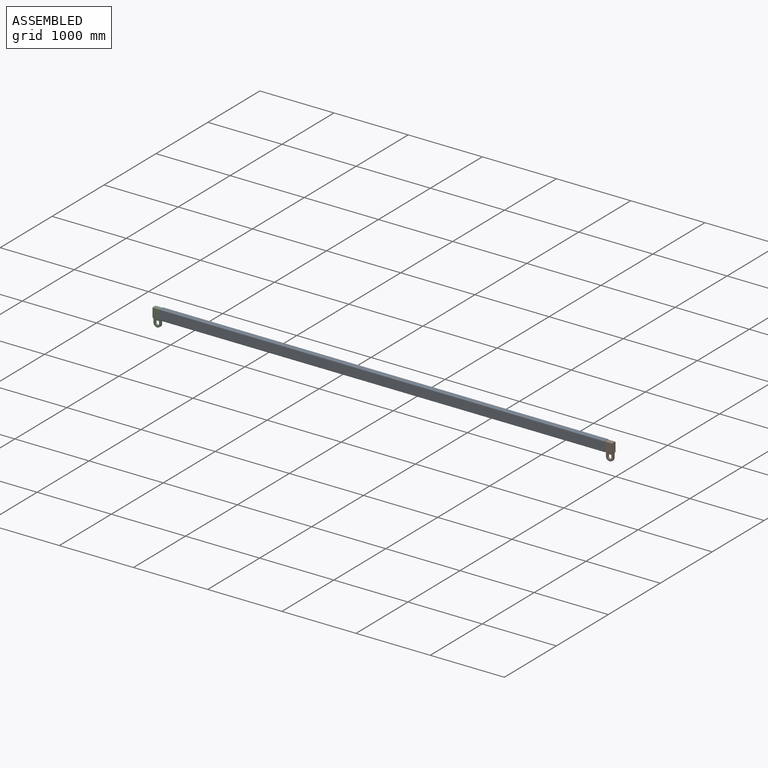
[diagram: assembled view]
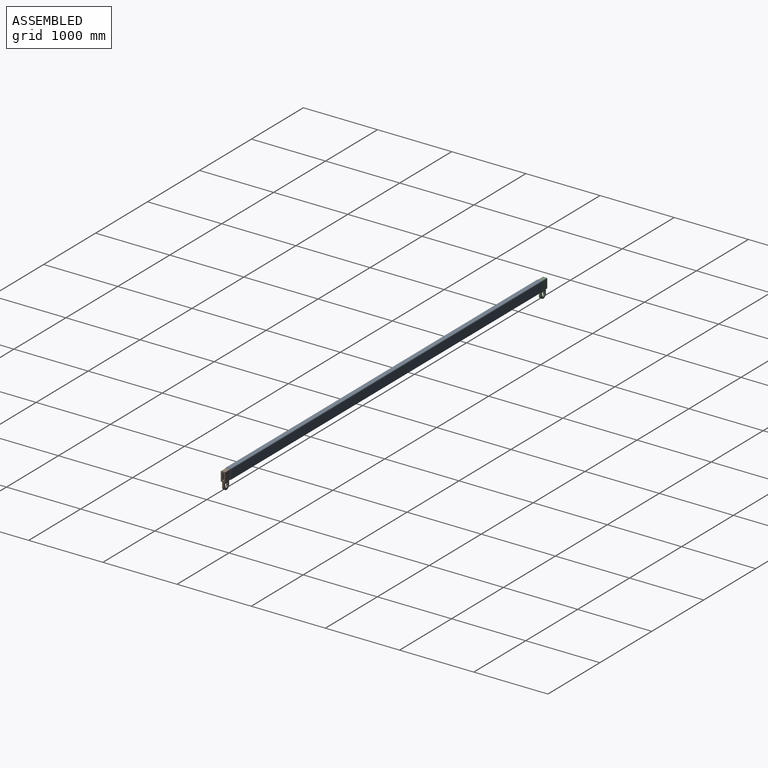
[diagram: assembled view, second angle]
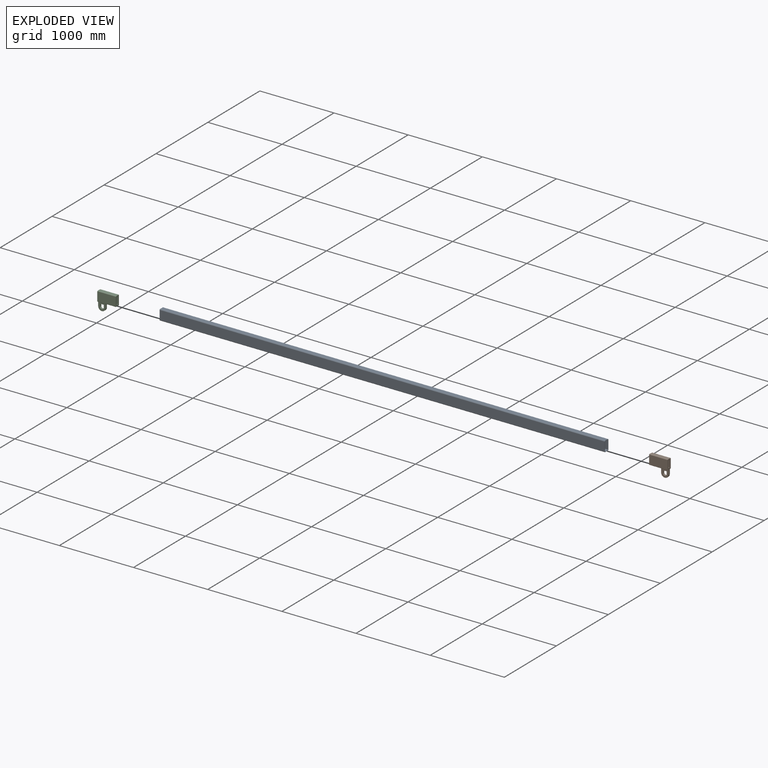
[diagram: exploded view]
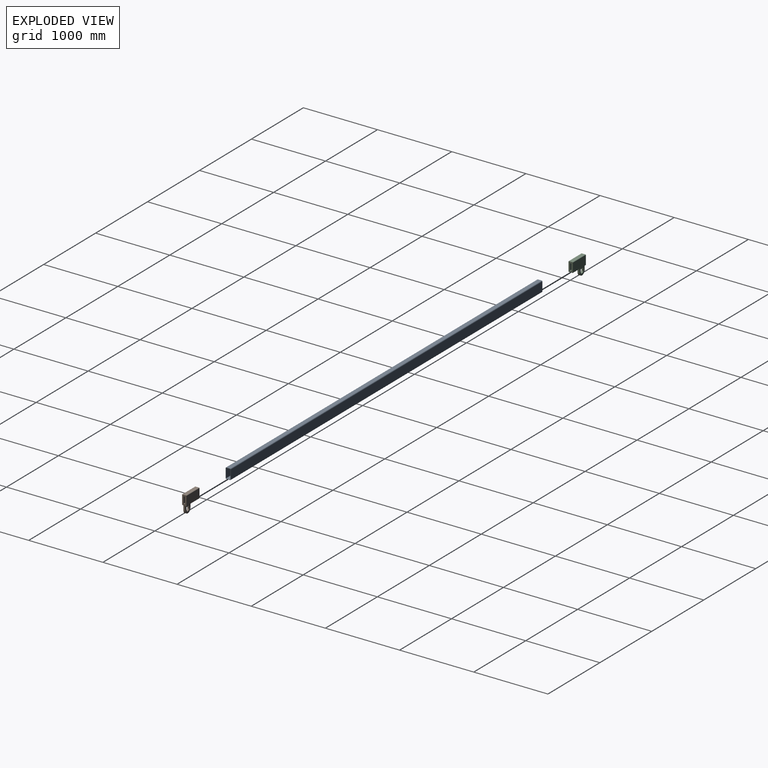
[diagram: exploded view, second angle]
ASSEMBLY  parts=3 mates=2
PART A: 18 faces, bbox 6000x70x140 mm
  f0: plane 6000x50mm, normal (0,0,-1), area 300000mm2, adj f1,f7,f8,f9
  f1: cylinder r=5mm len=6000mm, axis (-1,0,0), area 47123.6mm2, adj f0,f2,f8,f9
  f2: plane 6000x120mm, normal (0,1,0), area 720000mm2, adj f1,f3,f8,f9
  f3: cylinder r=5mm len=6000mm, axis (-1,0,0), area 47123.6mm2, adj f2,f4,f8,f9
  f4: plane 6000x50mm, normal (0,0,1), area 300000mm2, adj f3,f5,f8,f9
  f5: cylinder r=5mm len=6000mm, axis (-1,0,0), area 47123.6mm2, adj f4,f6,f8,f9
  f6: plane 6000x120mm, normal (0,-1,0), area 720000mm2, adj f5,f7,f8,f9
  f7: cylinder r=5mm len=6000mm, axis (-1,0,0), area 47123.6mm2, adj f0,f6,f8,f9
  f8: plane 140x70mm, normal (1,0,0), area 1935.6mm2, adj f0,f1,f2,f3,f4,f5,f6,f7
  f9: plane 140x70mm, normal (-1,0,0), area 1935.6mm2, adj f0,f1,f2,f3,f4,f5,f6,f7
  f10: plane 6000x50mm, normal (0,0,-1), area 300000mm2, adj f8,f9,f11,f17
  f11: cylinder r=10mm len=6000mm, axis (-1,0,0), area 94248.1mm2, adj f8,f9,f10,f12
  f12: plane 6000x120mm, normal (0,-1,0), area 720000mm2, adj f8,f9,f11,f13
  f13: cylinder r=10mm len=6000mm, axis (-1,0,0), area 94248.1mm2, adj f8,f9,f12,f14
  f14: plane 6000x50mm, normal (0,0,1), area 300000mm2, adj f8,f9,f13,f15
  f15: cylinder r=10mm len=6000mm, axis (-1,0,0), area 94248.1mm2, adj f8,f9,f14,f16
  f16: plane 6000x120mm, normal (0,1,0), area 720000mm2, adj f8,f9,f15,f17
  f17: cylinder r=10mm len=6000mm, axis (-1,0,0), area 94248.1mm2, adj f8,f9,f10,f16
PART B: 22 faces, bbox 250x60x238.9 mm
  f0: plane 250x120mm, normal (0,1,0), area 30000mm2, adj f1,f11,f12,f13
  f1: cylinder r=5mm len=250mm, axis (-1,0,0), area 1963.5mm2, adj f0,f2,f12,f13
  f2: plane 250x50mm, normal (0,0,-1), area 10000mm2, adj f1,f3,f12,f13,f15,f20,f21
  f3: cylinder r=5mm len=250mm, axis (-1,0,0), area 1963.5mm2, adj f2,f4,f12,f13
  f4: plane 250x120mm, normal (0,-1,0), area 30000mm2, adj f3,f5,f12,f13
  f5: cylinder r=5mm len=250mm, axis (-1,0,0), area 1963.5mm2, adj f4,f6,f12,f13
  f6: plane 250x50mm, normal (0,0,1), area 12500mm2, adj f5,f11,f12,f13
  f7: plane 250x90mm, normal (0,-1,0), area 22500mm2, adj f8,f10,f12,f13
  f8: plane 250x20mm, normal (0,0,-1), area 5000mm2, adj f7,f9,f12,f13
  f9: plane 250x90mm, normal (0,1,0), area 22500mm2, adj f8,f10,f12,f13
  f10: plane 250x20mm, normal (0,0,1), area 5000mm2, adj f7,f9,f12,f13
  f11: cylinder r=5mm len=250mm, axis (-1,0,0), area 1963.5mm2, adj f0,f6,f12,f13
  f12: plane 130x60mm, normal (1,0,0), area 5978.5mm2, adj f0,f1,f2,f3,f4,f5,f6,f7
  f13: plane 188.92x60mm, normal (-1,0,0), area 7451.5mm2, adj f0,f1,f2,f3,f4,f5,f6,f7
  f14: cylinder r=50mm len=100mm, axis (0,1,0), area 3927mm2, adj f13,f15,f20,f21
  f15: plane 58.92x25mm, normal (1,0,0), area 1473mm2, adj f2,f14,f20,f21
  f16: plane 50x25mm, normal (0,0,-1), area 1250mm2, adj f17,f19,f20,f21
  f17: plane 33.92x25mm, normal (-1,0,0), area 848mm2, adj f16,f18,f20,f21
  f18: cylinder r=25mm len=50mm, axis (0,1,0), area 1963.5mm2, adj f17,f19,f20,f21
  f19: plane 33.92x25mm, normal (1,0,0), area 848mm2, adj f16,f18,f20,f21
  f20: plane 108.92x100mm, normal (0,-1,0), area 7141.3mm2, adj f2,f13,f14,f15,f16,f17,f18,f19
  f21: plane 108.92x100mm, normal (0,1,0), area 7141.3mm2, adj f2,f13,f14,f15,f16,f17,f18,f19
PART C: same geometry as B
PLACE A t=(1780.81,-864.15,-207.57)mm fixed
PLACE B rot(axis=(0,0,1),180deg) t=(1780.81,-864.15,-207.57)mm
PLACE C t=(1780.81,-864.15,-207.57)mm
MATE fastened A.f9 <-> C.f15  axis (-1,0,0) through (-1219.19,-864.15,-272.57)mm
MATE fastened A.f8 <-> B.f15  axis (1,0,0) through (4780.81,-864.15,-272.57)mm
